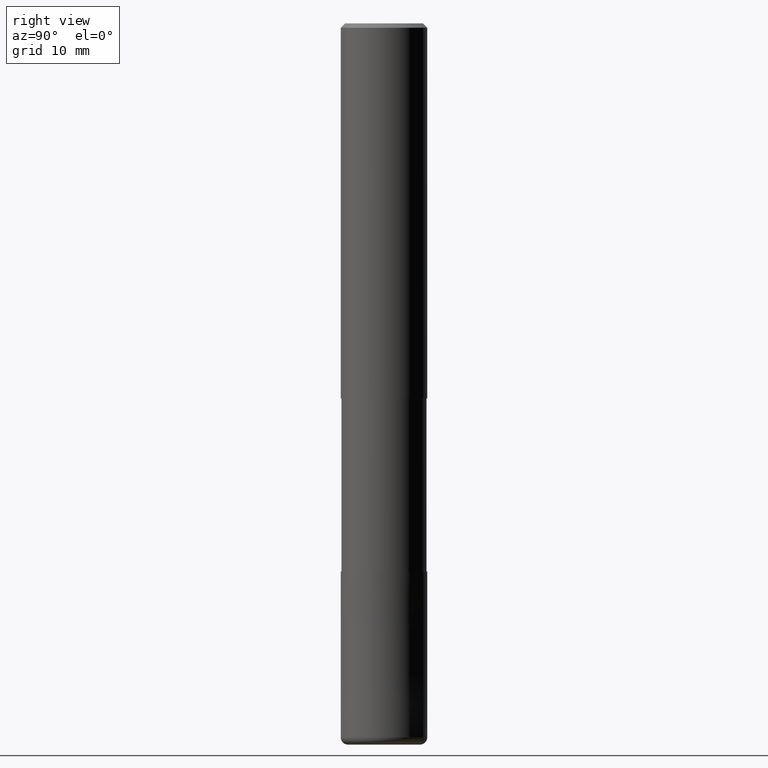
[diagram: clean part render]
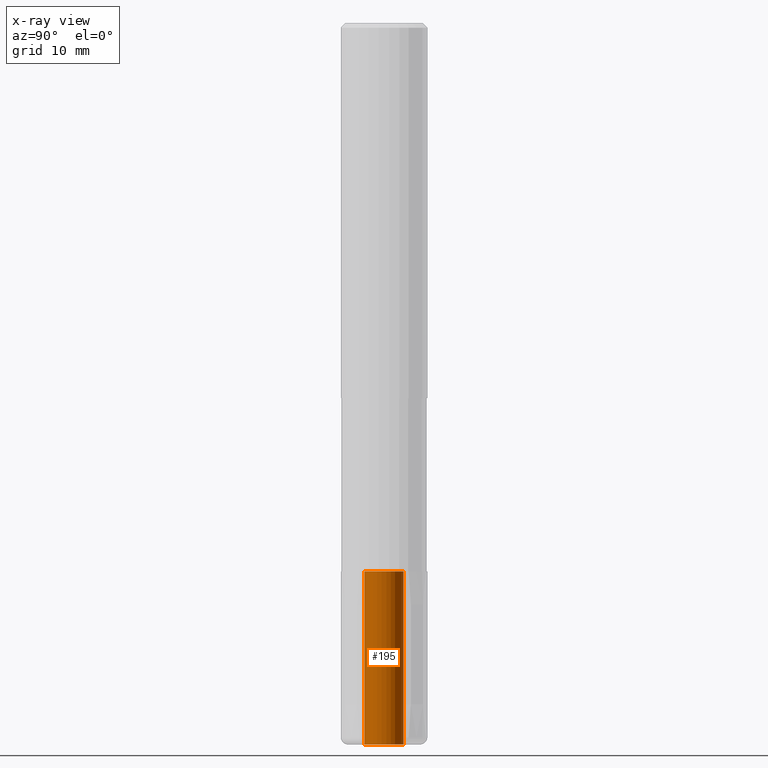
[diagram: x-ray — body ghosted, one internal face saturated and labeled with its STEP entity id]
A machine part, right view, then the same camera in x-ray: the body is ghosted and one INTERNAL B-rep face — a face not visible from any outside direction — is saturated and labeled: STEP entity #195.
In plain terms, the highlighted cylindrical surface (edge-blend (fillet) strip) has radius 2.7 mm, axis along (-0, -0, 1).
Its self-contained STEP definition (entity closure, byte-faithful):
#135=VERTEX_POINT('',#323);
#145=EDGE_CURVE('',#153,#183,#335,.T.);
#153=VERTEX_POINT('',#343);
#173=VERTEX_POINT('',#366);
#183=VERTEX_POINT('',#380);
#195=ADVANCED_FACE('',(#392),#393,.F.);
#215=EDGE_CURVE('',#173,#135,#416,.T.);
#225=EDGE_CURVE('',#135,#183,#428,.T.);
#257=EDGE_CURVE('',#153,#173,#464,.T.);
#323=CARTESIAN_POINT('',(3.30643715532042E-016,-2.7,-100.0));
#335=CIRCLE('',#548,2.7);
#343=CARTESIAN_POINT('',(0.0,2.7,-76.0));
#366=CARTESIAN_POINT('',(0.0,2.7,-100.0));
#380=CARTESIAN_POINT('',(3.30643715532042E-016,-2.7,-76.0));
#392=FACE_OUTER_BOUND('',#615,.T.);
#393=CYLINDRICAL_SURFACE('',#616,2.7);
#416=CIRCLE('',#643,2.7);
#428=LINE('',#659,#660);
#464=LINE('',#708,#709);
#548=AXIS2_PLACEMENT_3D('',#780,#781,#782);
#615=EDGE_LOOP('',(#845,#846,#847,#848));
#616=AXIS2_PLACEMENT_3D('',#849,#850,#851);
#643=AXIS2_PLACEMENT_3D('',#881,#882,#883);
#659=CARTESIAN_POINT('',(3.30643715532042E-016,-2.7,-88.0));
#660=VECTOR('',#904,1.0);
#708=CARTESIAN_POINT('',(-3.30643715532042E-016,2.7,-88.0));
#709=VECTOR('',#947,1.0);
#780=CARTESIAN_POINT('',(0.0,0.0,-76.0));
#781=DIRECTION('',(0.0,0.0,-1.0));
#782=DIRECTION('',(0.0,1.0,0.0));
#845=ORIENTED_EDGE('',*,*,#257,.T.);
#846=ORIENTED_EDGE('',*,*,#215,.T.);
#847=ORIENTED_EDGE('',*,*,#225,.T.);
#848=ORIENTED_EDGE('',*,*,#145,.F.);
#849=CARTESIAN_POINT('',(0.0,0.0,-88.0));
#850=DIRECTION('',(-0.0,-0.0,1.0));
#851=DIRECTION('',(0.0,1.0,0.0));
#881=CARTESIAN_POINT('',(0.0,0.0,-100.0));
#882=DIRECTION('',(0.0,0.0,-1.0));
#883=DIRECTION('',(0.0,1.0,0.0));
#904=DIRECTION('',(0.0,-0.0,1.0));
#947=DIRECTION('',(0.0,-0.0,-1.0));